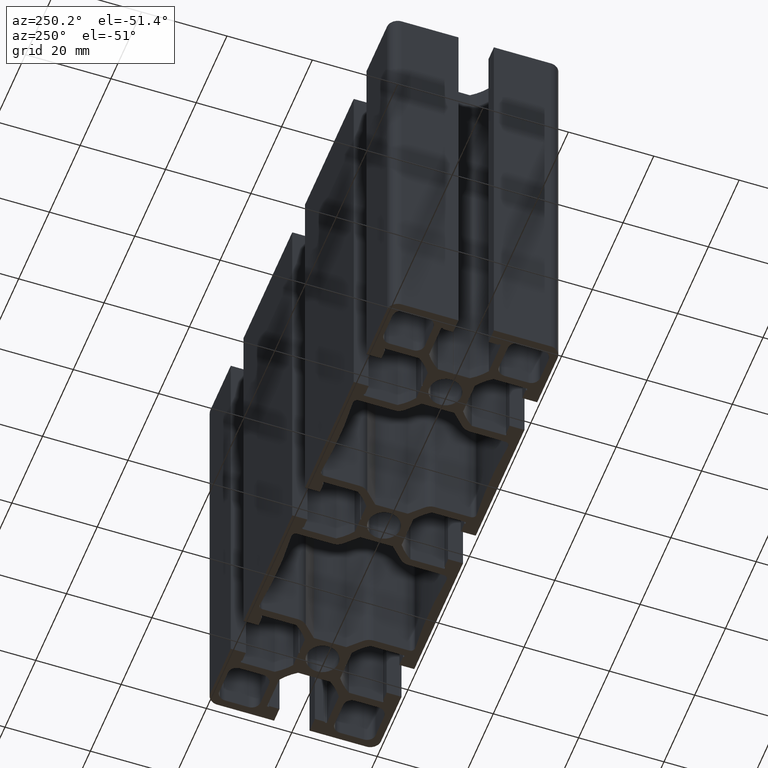
[diagram: clean part render]
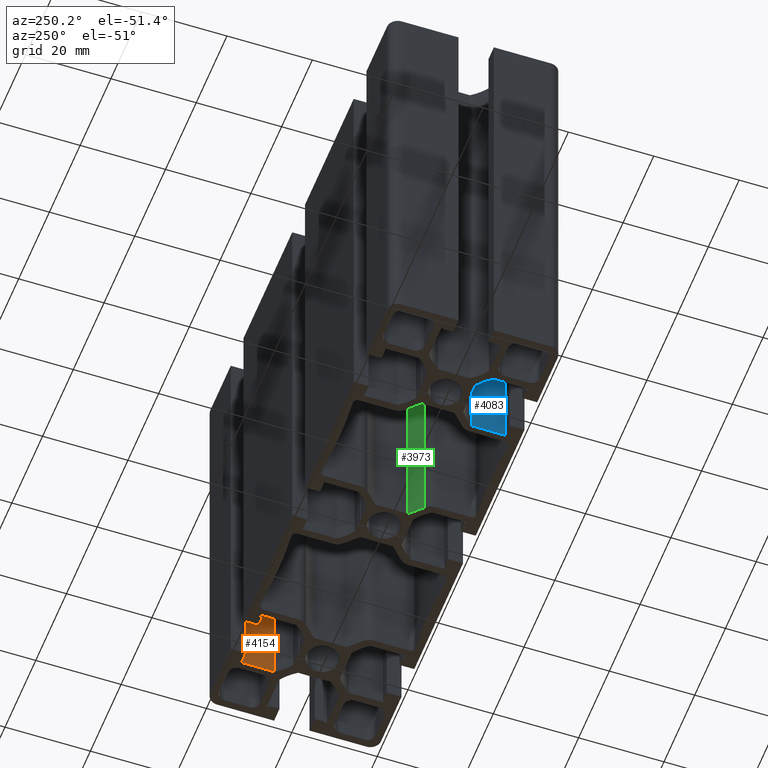
[diagram: same view with three faces highlighted in distinct colors, each labeled with its STEP entity id]
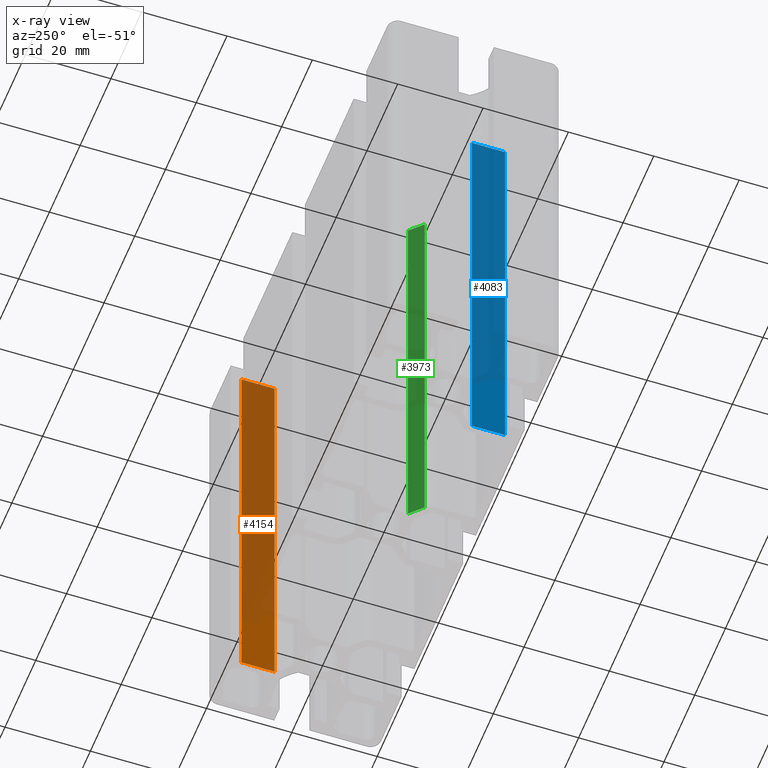
[diagram: x-ray of the same camera — body ghosted, the three highlighted faces saturated]
A machine part, auxiliary view with three faces highlighted in distinct colors.
The next image is the same camera in x-ray (body ghosted, the three faces saturated) — at least one of them is partly hidden behind the body in this view.
Their STEP definitions:

[orange] entity #4154 — the highlighted planar face has unit normal (-1, 0, 0).
#159=PLANE('',#4507);
#362=FACE_OUTER_BOUND('',#570,.T.);
#570=EDGE_LOOP('',(#3449,#3450,#3451,#3452));
#1036=LINE('',#6864,#1492);
#1037=LINE('',#6867,#1493);
#1038=LINE('',#6869,#1494);
#1039=LINE('',#6870,#1495);
#1492=VECTOR('',#5645,100.);
#1493=VECTOR('',#5648,7.80062327991342);
#1494=VECTOR('',#5649,7.80062327991342);
#1495=VECTOR('',#5650,100.);
#2051=VERTEX_POINT('',#6860);
#2052=VERTEX_POINT('',#6862);
#2053=VERTEX_POINT('',#6866);
#2054=VERTEX_POINT('',#6868);
#2650=EDGE_CURVE('',#2051,#2052,#1036,.T.);
#2651=EDGE_CURVE('',#2053,#2051,#1037,.T.);
#2652=EDGE_CURVE('',#2054,#2052,#1038,.T.);
#2653=EDGE_CURVE('',#2053,#2054,#1039,.T.);
#3449=ORIENTED_EDGE('',*,*,#2651,.T.);
#3450=ORIENTED_EDGE('',*,*,#2650,.T.);
#3451=ORIENTED_EDGE('',*,*,#2652,.F.);
#3452=ORIENTED_EDGE('',*,*,#2653,.F.);
#4154=ADVANCED_FACE('',(#362),#159,.T.);
#4507=AXIS2_PLACEMENT_3D('',#6865,#5646,#5647);
#5645=DIRECTION('',(0.,0.,1.));
#5646=DIRECTION('center_axis',(-1.,0.,0.));
#5647=DIRECTION('ref_axis',(0.,-1.,0.));
#5648=DIRECTION('',(0.,-1.,0.));
#5649=DIRECTION('',(0.,-1.,0.));
#5650=DIRECTION('',(0.,0.,1.));
#6860=CARTESIAN_POINT('',(47.,8.69937672008658,0.));
#6862=CARTESIAN_POINT('',(47.,8.69937672008658,100.));
#6864=CARTESIAN_POINT('',(47.,8.69937672008658,0.));
#6865=CARTESIAN_POINT('Origin',(47.,16.5,0.));
#6866=CARTESIAN_POINT('',(47.,16.5,0.));
#6867=CARTESIAN_POINT('',(47.,16.5,0.));
#6868=CARTESIAN_POINT('',(47.,16.5,100.));
#6869=CARTESIAN_POINT('',(47.,16.5,100.));
#6870=CARTESIAN_POINT('',(47.,16.5,0.));

[blue] entity #4083 — the highlighted planar face has unit normal (-1, 0, 0).
#108=PLANE('',#4396);
#291=FACE_OUTER_BOUND('',#499,.T.);
#499=EDGE_LOOP('',(#3165,#3166,#3167,#3168));
#863=LINE('',#6438,#1319);
#864=LINE('',#6441,#1320);
#865=LINE('',#6443,#1321);
#866=LINE('',#6444,#1322);
#1319=VECTOR('',#5250,100.);
#1320=VECTOR('',#5253,7.80062327991342);
#1321=VECTOR('',#5254,7.80062327991342);
#1322=VECTOR('',#5255,100.);
#1909=VERTEX_POINT('',#6434);
#1910=VERTEX_POINT('',#6436);
#1911=VERTEX_POINT('',#6440);
#1912=VERTEX_POINT('',#6442);
#2437=EDGE_CURVE('',#1909,#1910,#863,.T.);
#2438=EDGE_CURVE('',#1911,#1909,#864,.T.);
#2439=EDGE_CURVE('',#1912,#1910,#865,.T.);
#2440=EDGE_CURVE('',#1911,#1912,#866,.T.);
#3165=ORIENTED_EDGE('',*,*,#2438,.T.);
#3166=ORIENTED_EDGE('',*,*,#2437,.T.);
#3167=ORIENTED_EDGE('',*,*,#2439,.F.);
#3168=ORIENTED_EDGE('',*,*,#2440,.F.);
#4083=ADVANCED_FACE('',(#291),#108,.T.);
#4396=AXIS2_PLACEMENT_3D('',#6439,#5251,#5252);
#5250=DIRECTION('',(0.,0.,1.));
#5251=DIRECTION('center_axis',(-1.,0.,0.));
#5252=DIRECTION('ref_axis',(0.,-1.,0.));
#5253=DIRECTION('',(0.,-1.,0.));
#5254=DIRECTION('',(0.,-1.,0.));
#5255=DIRECTION('',(0.,0.,1.));
#6434=CARTESIAN_POINT('',(-33.,-16.5,0.));
#6436=CARTESIAN_POINT('',(-33.,-16.5,100.));
#6438=CARTESIAN_POINT('',(-33.,-16.5,0.));
#6439=CARTESIAN_POINT('Origin',(-33.,-8.69937672008658,0.));
#6440=CARTESIAN_POINT('',(-33.,-8.69937672008658,0.));
#6441=CARTESIAN_POINT('',(-33.,-8.69937672008658,0.));
#6442=CARTESIAN_POINT('',(-33.,-8.69937672008658,100.));
#6443=CARTESIAN_POINT('',(-33.,-8.69937672008658,100.));
#6444=CARTESIAN_POINT('',(-33.,-8.69937672008658,0.));

[green] entity #3973 — the highlighted planar face has unit normal (0.7071, -0.7071, 0).
#44=PLANE('',#4194);
#181=FACE_OUTER_BOUND('',#386,.T.);
#386=EDGE_LOOP('',(#2731,#2732,#2733,#2734));
#627=LINE('',#5780,#1083);
#629=LINE('',#5784,#1085);
#630=LINE('',#5786,#1086);
#631=LINE('',#5787,#1087);
#1083=VECTOR('',#4610,100.);
#1085=VECTOR('',#4614,4.13137084989848);
#1086=VECTOR('',#4615,100.);
#1087=VECTOR('',#4616,4.13137084989848);
#1689=VERTEX_POINT('',#5777);
#1690=VERTEX_POINT('',#5779);
#1691=VERTEX_POINT('',#5783);
#1692=VERTEX_POINT('',#5785);
#2109=EDGE_CURVE('',#1689,#1690,#627,.T.);
#2111=EDGE_CURVE('',#1691,#1689,#629,.T.);
#2112=EDGE_CURVE('',#1691,#1692,#630,.T.);
#2113=EDGE_CURVE('',#1690,#1692,#631,.T.);
#2731=ORIENTED_EDGE('',*,*,#2111,.F.);
#2732=ORIENTED_EDGE('',*,*,#2112,.T.);
#2733=ORIENTED_EDGE('',*,*,#2113,.F.);
#2734=ORIENTED_EDGE('',*,*,#2109,.F.);
#3973=ADVANCED_FACE('',(#181),#44,.F.);
#4194=AXIS2_PLACEMENT_3D('',#5782,#4612,#4613);
#4610=DIRECTION('',(0.,0.,1.));
#4612=DIRECTION('center_axis',(0.707106781186548,-0.707106781186547,0.));
#4613=DIRECTION('ref_axis',(0.707106781186547,0.707106781186548,0.));
#4614=DIRECTION('',(0.707106781186547,0.707106781186548,0.));
#4615=DIRECTION('',(0.,0.,1.));
#4616=DIRECTION('',(-0.707106781186547,-0.707106781186548,0.));
#5777=CARTESIAN_POINT('',(-4.90000000000001,-3.8,0.));
#5779=CARTESIAN_POINT('',(-4.90000000000001,-3.8,100.));
#5780=CARTESIAN_POINT('',(-4.90000000000001,-3.8,0.));
#5782=CARTESIAN_POINT('Origin',(-7.82132034355965,-6.72132034355965,0.));
#5783=CARTESIAN_POINT('',(-7.82132034355965,-6.72132034355965,0.));
#5784=CARTESIAN_POINT('',(-4.18566017177983,-3.08566017177982,0.));
#5785=CARTESIAN_POINT('',(-7.82132034355965,-6.72132034355965,100.));
#5786=CARTESIAN_POINT('',(-7.82132034355965,-6.72132034355965,0.));
#5787=CARTESIAN_POINT('',(-4.18566017177983,-3.08566017177982,100.));